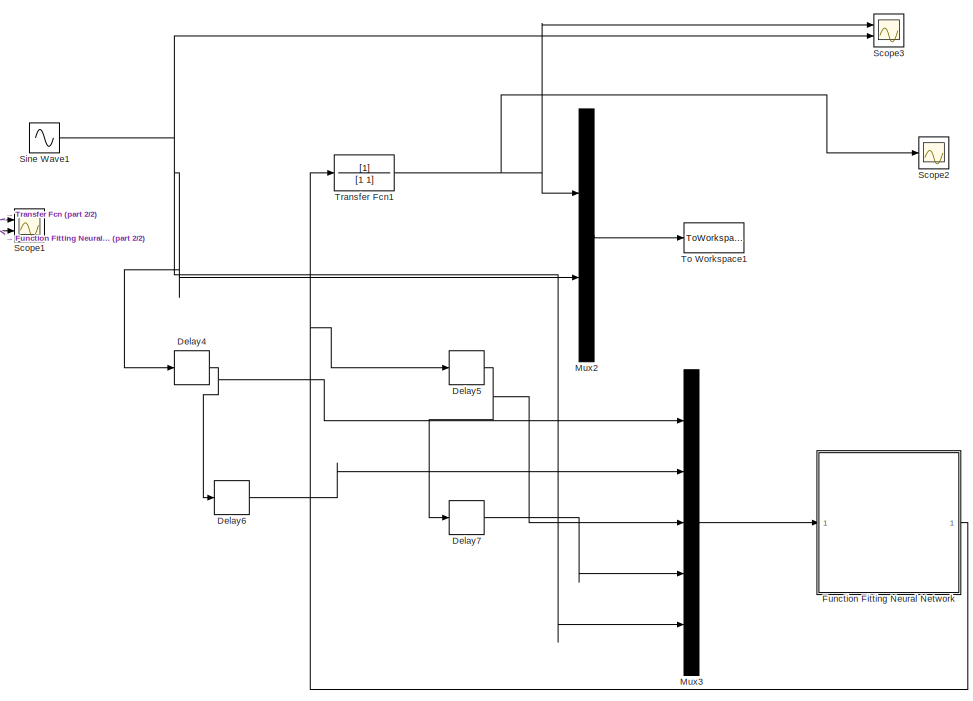
[diagram: root canvas - part 1/2, right side, full height]
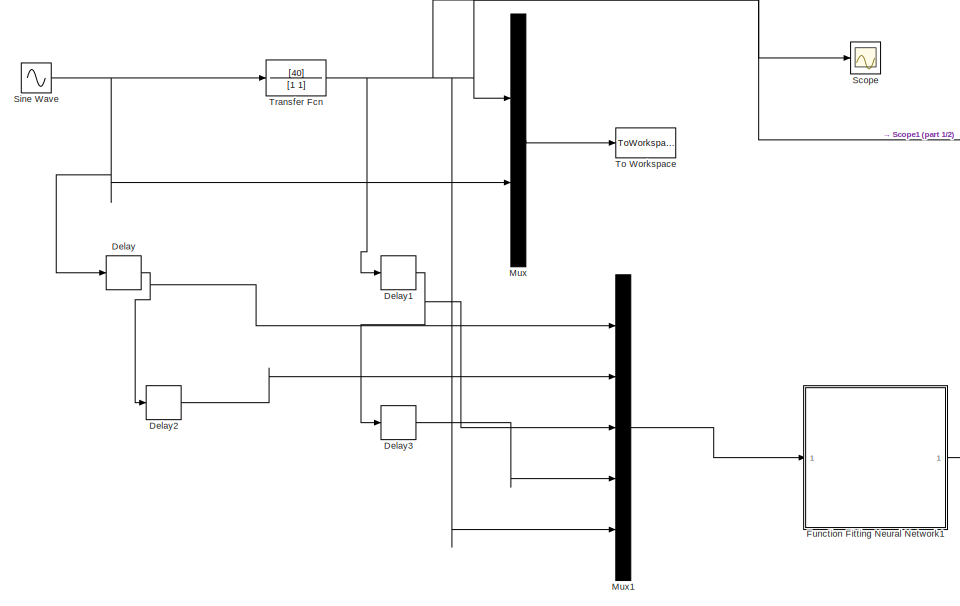
[diagram: root canvas - part 2/2, left side, full height]
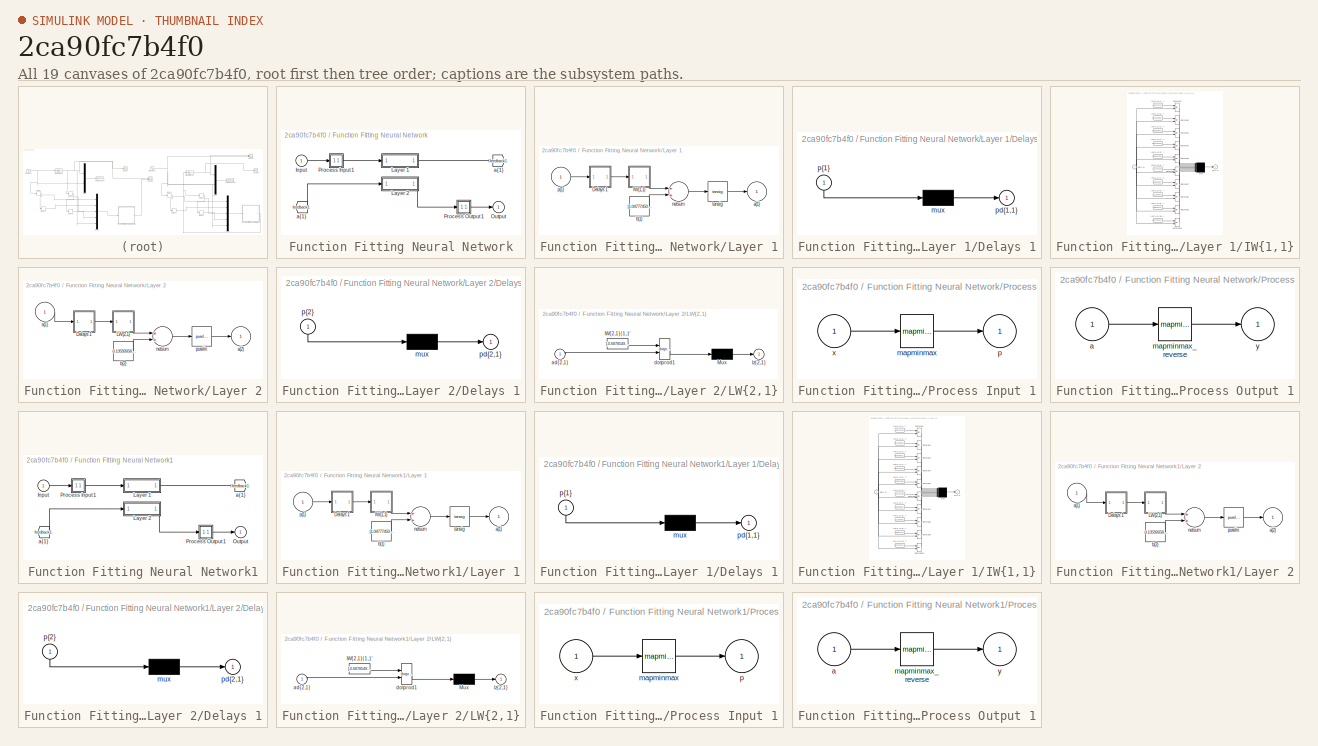
[diagram: thumbnail index - all 19 canvases of the model, root first then tree order]
MODEL slx_2ca90fc7b4f0
KIND model
CONFIG AbsTol = auto
CONFIG EnableMultiTasking = off
CONFIG FixedStep = 0.01
CONFIG MaxStep = auto
CONFIG MinStep = auto
CONFIG RelTol = 1e-3
CONFIG SampleTimeConstraint = Unconstrained
CONFIG Solver = FixedStepAuto
CONFIG SolverName = FixedStepAuto
CONFIG StartTime = 0.0
CONFIG StopTime = 100.0
BLOCK [Delay] Delay
  DelayLength = 1
  InitialCondition = 0
  InputPortMap = u0
  Ports = [1, 1]
BLOCK [Delay] Delay1
  DelayLength = 1
  InitialCondition = 0
  InputPortMap = u0
  Ports = [1, 1]
BLOCK [Delay] Delay2
  DelayLength = 1
  InitialCondition = 0
  InputPortMap = u0
  Ports = [1, 1]
BLOCK [Delay] Delay3
  DelayLength = 1
  InitialCondition = 0
  InputPortMap = u0
  Ports = [1, 1]
BLOCK [Delay] Delay4
  DelayLength = 1
  InitialCondition = 0
  InputPortMap = u0
  Ports = [1, 1]
BLOCK [Delay] Delay5
  DelayLength = 1
  InitialCondition = 0
  InputPortMap = u0
  Ports = [1, 1]
BLOCK [Delay] Delay6
  DelayLength = 1
  InitialCondition = 0
  InputPortMap = u0
  Ports = [1, 1]
BLOCK [Delay] Delay7
  DelayLength = 1
  InitialCondition = 0
  InputPortMap = u0
  Ports = [1, 1]
BLOCK [SubSystem] Function Fitting Neural Network
  Ports = [1, 1]
  RequestExecContextInheritance = off
  Variant = off
BLOCK [From] Function Fitting Neural Network/ a{1} 
  GotoTag = feedback1
BLOCK [Inport] Function Fitting Neural Network/Input
  IconDisplay = Port number
  PortDimensions = 5
BLOCK [SubSystem] Function Fitting Neural Network/Layer 1
  Ports = [1, 1]
  RequestExecContextInheritance = off
  Variant = off
BLOCK [SubSystem] Function Fitting Neural Network/Layer 1/Delays 1
  Ports = [1, 1]
  RequestExecContextInheritance = off
  Variant = off
BLOCK [Mux] Function Fitting Neural Network/Layer 1/Delays 1/mux
  Inputs = 1
  Ports = [1, 1]
BLOCK [Outport] Function Fitting Neural Network/Layer 1/Delays 1/pd{1,1}
  IconDisplay = Port number
BLOCK [Inport] Function Fitting Neural Network/Layer 1/Delays 1/p{1}
  IconDisplay = Port number
  PortDimensions = 5
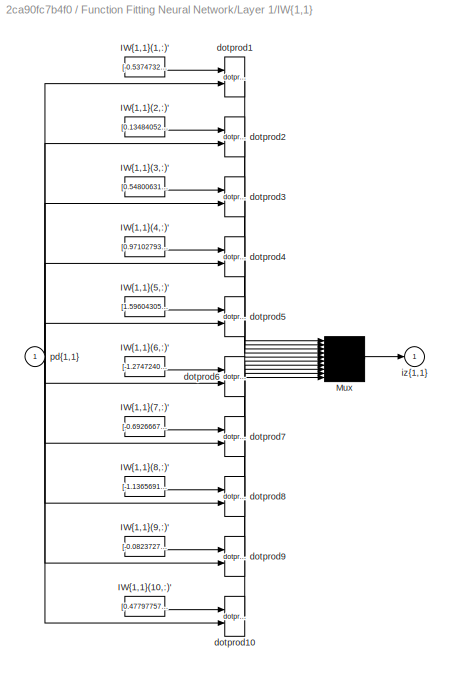
BLOCK [SubSystem] Function Fitting Neural Network/Layer 1/IW{1,1}
  Ports = [1, 1]
  RequestExecContextInheritance = off
  Variant = off
BLOCK [Constant] Function Fitting Neural Network/Layer 1/IW{1,1}/IW{1,1}(1,:)'
  Value = [-0.53747323600851593;0.12837817900687515;-0.81841480590470539;-0.70028737097478255;0.89079933693795632]
BLOCK [Constant] Function Fitting Neural Network/Layer 1/IW{1,1}/IW{1,1}(10,:)'
  Value = [0.47797757792099838;1.1701097540495529;0.40163238008918878;0.087691710526443908;-1.5074124776427453]
BLOCK [Constant] Function Fitting Neural Network/Layer 1/IW{1,1}/IW{1,1}(2,:)'
  Value = [0.13484052542157549;-1.0346971298142165;0.71712003940030067;0.63365159522886794;-1.5252454149059469]
BLOCK [Constant] Function Fitting Neural Network/Layer 1/IW{1,1}/IW{1,1}(3,:)'
  Value = [0.5480063105318066;0.3422184031651197;-0.76013251235281831;1.3249435842832222;-0.8867358682990758]
BLOCK [Constant] Function Fitting Neural Network/Layer 1/IW{1,1}/IW{1,1}(4,:)'
  Value = [0.97102793768099316;-1.09391861398376;1.3122119715910747;0.62317280181124113;0.79077490532891304]
BLOCK [Constant] Function Fitting Neural Network/Layer 1/IW{1,1}/IW{1,1}(5,:)'
  Value = [1.5960430529630831;-1.2092978548636018;-0.56101551599679822;-0.47505314074111604;-0.65216447990274329]
BLOCK [Constant] Function Fitting Neural Network/Layer 1/IW{1,1}/IW{1,1}(6,:)'
  Value = [-1.2747240826377648;0.65905297506986504;1.368705094030781;0.67183148279936522;-0.18450538591836163]
BLOCK [Constant] Function Fitting Neural Network/Layer 1/IW{1,1}/IW{1,1}(7,:)'
  Value = [-0.69266676847053943;0.16367310999235246;-0.61918048233438283;-0.4897285195013758;0.880113528728242]
BLOCK [Constant] Function Fitting Neural Network/Layer 1/IW{1,1}/IW{1,1}(8,:)'
  Value = [-1.1365691382880001;1.5985163195671406;1.5527262981396184;-0.35821939113242335;-0.61100164194473128]
BLOCK [Constant] Function Fitting Neural Network/Layer 1/IW{1,1}/IW{1,1}(9,:)'
  Value = [-0.08237271108489537;-0.6815622811907277;0.10289539556448629;0.44398113099957298;-1.3690618549783862]
BLOCK [Mux] Function Fitting Neural Network/Layer 1/IW{1,1}/Mux
  Inputs = 10
  Ports = [10, 1]
BLOCK [Reference] Function Fitting Neural Network/Layer 1/IW{1,1}/dotprod1  REF=neural/Weight Functions/dotprod
  Ports = [2, 1]
  SourceBlock = neural/Weight Functions/dotprod
  SourceProductBaseCode = NN
  SourceProductName = Neural Network Toolbox
  SourceType = DOTPROD
BLOCK [Reference] Function Fitting Neural Network/Layer 1/IW{1,1}/dotprod10  REF=neural/Weight Functions/dotprod
  Ports = [2, 1]
  SourceBlock = neural/Weight Functions/dotprod
  SourceProductBaseCode = NN
  SourceProductName = Neural Network Toolbox
  SourceType = DOTPROD
BLOCK [Reference] Function Fitting Neural Network/Layer 1/IW{1,1}/dotprod2  REF=neural/Weight Functions/dotprod
  Ports = [2, 1]
  SourceBlock = neural/Weight Functions/dotprod
  SourceProductBaseCode = NN
  SourceProductName = Neural Network Toolbox
  SourceType = DOTPROD
BLOCK [Reference] Function Fitting Neural Network/Layer 1/IW{1,1}/dotprod3  REF=neural/Weight Functions/dotprod
  Ports = [2, 1]
  SourceBlock = neural/Weight Functions/dotprod
  SourceProductBaseCode = NN
  SourceProductName = Neural Network Toolbox
  SourceType = DOTPROD
BLOCK [Reference] Function Fitting Neural Network/Layer 1/IW{1,1}/dotprod4  REF=neural/Weight Functions/dotprod
  Ports = [2, 1]
  SourceBlock = neural/Weight Functions/dotprod
  SourceProductBaseCode = NN
  SourceProductName = Neural Network Toolbox
  SourceType = DOTPROD
BLOCK [Reference] Function Fitting Neural Network/Layer 1/IW{1,1}/dotprod5  REF=neural/Weight Functions/dotprod
  Ports = [2, 1]
  SourceBlock = neural/Weight Functions/dotprod
  SourceProductBaseCode = NN
  SourceProductName = Neural Network Toolbox
  SourceType = DOTPROD
BLOCK [Reference] Function Fitting Neural Network/Layer 1/IW{1,1}/dotprod6  REF=neural/Weight Functions/dotprod
  Ports = [2, 1]
  SourceBlock = neural/Weight Functions/dotprod
  SourceProductBaseCode = NN
  SourceProductName = Neural Network Toolbox
  SourceType = DOTPROD
BLOCK [Reference] Function Fitting Neural Network/Layer 1/IW{1,1}/dotprod7  REF=neural/Weight Functions/dotprod
  Ports = [2, 1]
  SourceBlock = neural/Weight Functions/dotprod
  SourceProductBaseCode = NN
  SourceProductName = Neural Network Toolbox
  SourceType = DOTPROD
BLOCK [Reference] Function Fitting Neural Network/Layer 1/IW{1,1}/dotprod8  REF=neural/Weight Functions/dotprod
  Ports = [2, 1]
  SourceBlock = neural/Weight Functions/dotprod
  SourceProductBaseCode = NN
  SourceProductName = Neural Network Toolbox
  SourceType = DOTPROD
BLOCK [Reference] Function Fitting Neural Network/Layer 1/IW{1,1}/dotprod9  REF=neural/Weight Functions/dotprod
  Ports = [2, 1]
  SourceBlock = neural/Weight Functions/dotprod
  SourceProductBaseCode = NN
  SourceProductName = Neural Network Toolbox
  SourceType = DOTPROD
BLOCK [Outport] Function Fitting Neural Network/Layer 1/IW{1,1}/iz{1,1}
  IconDisplay = Port number
BLOCK [Inport] Function Fitting Neural Network/Layer 1/IW{1,1}/pd{1,1}
  IconDisplay = Port number
  PortDimensions = 5
BLOCK [Outport] Function Fitting Neural Network/Layer 1/a{1}
  IconDisplay = Port number
  InitialOutput = [0;0;0;0;0;0;0;0;0;0]
BLOCK [Constant] Function Fitting Neural Network/Layer 1/b{1}
  Value = [1.0477745001887937;-1.0414962517958946;-0.70172404739261607;-0.47854652314392992;-0.2090222607713447;-0.3567161932972524;0.052998952557050248;-1.5433844484051324;2.0746099009380772;0.74801104776784277]
BLOCK [Sum] Function Fitting Neural Network/Layer 1/netsum
  Inputs = 2
  Ports = [2, 1]
BLOCK [Inport] Function Fitting Neural Network/Layer 1/p{1}
  IconDisplay = Port number
  PortDimensions = 5
BLOCK [Reference] Function Fitting Neural Network/Layer 1/tansig  REF=neural/Transfer Functions/tansig
  Ports = [1, 1]
  SourceBlock = neural/Transfer Functions/tansig
  SourceProductBaseCode = NN
  SourceProductName = Neural Network Toolbox
  SourceType = TANSIG
BLOCK [SubSystem] Function Fitting Neural Network/Layer 2
  Ports = [1, 1]
  RequestExecContextInheritance = off
  Variant = off
BLOCK [SubSystem] Function Fitting Neural Network/Layer 2/Delays 1
  Ports = [1, 1]
  RequestExecContextInheritance = off
  Variant = off
BLOCK [Mux] Function Fitting Neural Network/Layer 2/Delays 1/mux
  Inputs = 1
  Ports = [1, 1]
BLOCK [Outport] Function Fitting Neural Network/Layer 2/Delays 1/pd{2,1}
  IconDisplay = Port number
BLOCK [Inport] Function Fitting Neural Network/Layer 2/Delays 1/p{2}
  IconDisplay = Port number
  PortDimensions = 10
BLOCK [SubSystem] Function Fitting Neural Network/Layer 2/LW{2,1}
  Ports = [1, 1]
  RequestExecContextInheritance = off
  Variant = off
BLOCK [Constant] Function Fitting Neural Network/Layer 2/LW{2,1}/IW{2,1}(1,:)'
  Value = [-0.68785492656406455;-0.46746510641153421;0.71918235867292146;-0.0023047396825711082;-0.023219389789162697;-0.035761110294063765;-0.51891871057974481;-1.2938818775930994;-0.52413447335247021;0.14125981506850174]
BLOCK [Mux] Function Fitting Neural Network/Layer 2/LW{2,1}/Mux
  Inputs = 1
  Ports = [1, 1]
BLOCK [Inport] Function Fitting Neural Network/Layer 2/LW{2,1}/ad{2,1}
  IconDisplay = Port number
  PortDimensions = 10
BLOCK [Reference] Function Fitting Neural Network/Layer 2/LW{2,1}/dotprod1  REF=neural/Weight Functions/dotprod
  Ports = [2, 1]
  SourceBlock = neural/Weight Functions/dotprod
  SourceProductBaseCode = NN
  SourceProductName = Neural Network Toolbox
  SourceType = DOTPROD
BLOCK [Outport] Function Fitting Neural Network/Layer 2/LW{2,1}/lz{2,1}
  IconDisplay = Port number
BLOCK [Inport] Function Fitting Neural Network/Layer 2/a{1} 
  IconDisplay = Port number
  PortDimensions = 10
BLOCK [Outport] Function Fitting Neural Network/Layer 2/a{2}
  IconDisplay = Port number
  InitialOutput = 0
BLOCK [Constant] Function Fitting Neural Network/Layer 2/b{2}
  Value = -0.13592658820545742
BLOCK [Sum] Function Fitting Neural Network/Layer 2/netsum
  Inputs = 2
  Ports = [2, 1]
BLOCK [Reference] Function Fitting Neural Network/Layer 2/purelin  REF=neural/Transfer Functions/purelin
  Ports = [1, 1]
  SourceBlock = neural/Transfer Functions/purelin
  SourceProductBaseCode = NN
  SourceProductName = Neural Network Toolbox
  SourceType = PURELIN
BLOCK [Outport] Function Fitting Neural Network/Output
  IconDisplay = Port number
  InitialOutput = 0
BLOCK [SubSystem] Function Fitting Neural Network/Process Input 1
  Ports = [1, 1]
  RequestExecContextInheritance = off
  Variant = off
BLOCK [Reference] Function Fitting Neural Network/Process Input 1/mapminmax  REF=neural/Processing Functions/mapminmax
  Ports = [1, 1]
  SourceBlock = neural/Processing Functions/mapminmax
  SourceProductBaseCode = NN
  SourceProductName = Neural Network Toolbox
  SourceType = MAPMINMAX Preprocess
BLOCK [Outport] Function Fitting Neural Network/Process Input 1/p
  IconDisplay = Port number
  PortDimensions = 5
BLOCK [Inport] Function Fitting Neural Network/Process Input 1/x
  IconDisplay = Port number
  PortDimensions = 5
BLOCK [SubSystem] Function Fitting Neural Network/Process Output 1
  Ports = [1, 1]
  RequestExecContextInheritance = off
  Variant = off
BLOCK [Inport] Function Fitting Neural Network/Process Output 1/a
  IconDisplay = Port number
  PortDimensions = 1
BLOCK [Reference] Function Fitting Neural Network/Process Output 1/mapminmax_reverse  REF=neural/Processing Functions/mapminmax_reverse
  Ports = [1, 1]
  SourceBlock = neural/Processing Functions/mapminmax_reverse
  SourceProductBaseCode = NN
  SourceProductName = Neural Network Toolbox
  SourceType = MAPMINMAX Reverse Process
BLOCK [Outport] Function Fitting Neural Network/Process Output 1/y
  IconDisplay = Port number
  PortDimensions = 1
BLOCK [Goto] Function Fitting Neural Network/a{1}
  GotoTag = feedback1
BLOCK [SubSystem] Function Fitting Neural Network1
  Ports = [1, 1]
  RequestExecContextInheritance = off
  Variant = off
BLOCK [From] Function Fitting Neural Network1/ a{1} 
  GotoTag = feedback1
BLOCK [Inport] Function Fitting Neural Network1/Input
  IconDisplay = Port number
  PortDimensions = 5
BLOCK [SubSystem] Function Fitting Neural Network1/Layer 1
  Ports = [1, 1]
  RequestExecContextInheritance = off
  Variant = off
BLOCK [SubSystem] Function Fitting Neural Network1/Layer 1/Delays 1
  Ports = [1, 1]
  RequestExecContextInheritance = off
  Variant = off
BLOCK [Mux] Function Fitting Neural Network1/Layer 1/Delays 1/mux
  Inputs = 1
  Ports = [1, 1]
BLOCK [Outport] Function Fitting Neural Network1/Layer 1/Delays 1/pd{1,1}
  IconDisplay = Port number
BLOCK [Inport] Function Fitting Neural Network1/Layer 1/Delays 1/p{1}
  IconDisplay = Port number
  PortDimensions = 5
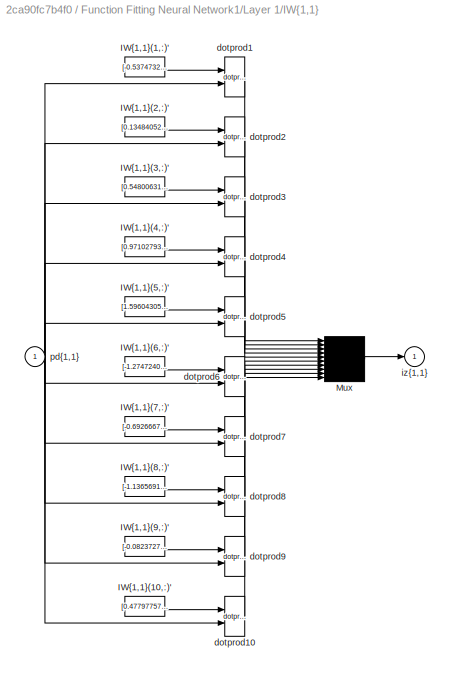
BLOCK [SubSystem] Function Fitting Neural Network1/Layer 1/IW{1,1}
  Ports = [1, 1]
  RequestExecContextInheritance = off
  Variant = off
BLOCK [Constant] Function Fitting Neural Network1/Layer 1/IW{1,1}/IW{1,1}(1,:)'
  Value = [-0.53747323600851593;0.12837817900687515;-0.81841480590470539;-0.70028737097478255;0.89079933693795632]
BLOCK [Constant] Function Fitting Neural Network1/Layer 1/IW{1,1}/IW{1,1}(10,:)'
  Value = [0.47797757792099838;1.1701097540495529;0.40163238008918878;0.087691710526443908;-1.5074124776427453]
BLOCK [Constant] Function Fitting Neural Network1/Layer 1/IW{1,1}/IW{1,1}(2,:)'
  Value = [0.13484052542157549;-1.0346971298142165;0.71712003940030067;0.63365159522886794;-1.5252454149059469]
BLOCK [Constant] Function Fitting Neural Network1/Layer 1/IW{1,1}/IW{1,1}(3,:)'
  Value = [0.5480063105318066;0.3422184031651197;-0.76013251235281831;1.3249435842832222;-0.8867358682990758]
BLOCK [Constant] Function Fitting Neural Network1/Layer 1/IW{1,1}/IW{1,1}(4,:)'
  Value = [0.97102793768099316;-1.09391861398376;1.3122119715910747;0.62317280181124113;0.79077490532891304]
BLOCK [Constant] Function Fitting Neural Network1/Layer 1/IW{1,1}/IW{1,1}(5,:)'
  Value = [1.5960430529630831;-1.2092978548636018;-0.56101551599679822;-0.47505314074111604;-0.65216447990274329]
BLOCK [Constant] Function Fitting Neural Network1/Layer 1/IW{1,1}/IW{1,1}(6,:)'
  Value = [-1.2747240826377648;0.65905297506986504;1.368705094030781;0.67183148279936522;-0.18450538591836163]
BLOCK [Constant] Function Fitting Neural Network1/Layer 1/IW{1,1}/IW{1,1}(7,:)'
  Value = [-0.69266676847053943;0.16367310999235246;-0.61918048233438283;-0.4897285195013758;0.880113528728242]
BLOCK [Constant] Function Fitting Neural Network1/Layer 1/IW{1,1}/IW{1,1}(8,:)'
  Value = [-1.1365691382880001;1.5985163195671406;1.5527262981396184;-0.35821939113242335;-0.61100164194473128]
BLOCK [Constant] Function Fitting Neural Network1/Layer 1/IW{1,1}/IW{1,1}(9,:)'
  Value = [-0.08237271108489537;-0.6815622811907277;0.10289539556448629;0.44398113099957298;-1.3690618549783862]
BLOCK [Mux] Function Fitting Neural Network1/Layer 1/IW{1,1}/Mux
  Inputs = 10
  Ports = [10, 1]
BLOCK [Reference] Function Fitting Neural Network1/Layer 1/IW{1,1}/dotprod1  REF=neural/Weight Functions/dotprod
  Ports = [2, 1]
  SourceBlock = neural/Weight Functions/dotprod
  SourceProductBaseCode = NN
  SourceProductName = Neural Network Toolbox
  SourceType = DOTPROD
BLOCK [Reference] Function Fitting Neural Network1/Layer 1/IW{1,1}/dotprod10  REF=neural/Weight Functions/dotprod
  Ports = [2, 1]
  SourceBlock = neural/Weight Functions/dotprod
  SourceProductBaseCode = NN
  SourceProductName = Neural Network Toolbox
  SourceType = DOTPROD
BLOCK [Reference] Function Fitting Neural Network1/Layer 1/IW{1,1}/dotprod2  REF=neural/Weight Functions/dotprod
  Ports = [2, 1]
  SourceBlock = neural/Weight Functions/dotprod
  SourceProductBaseCode = NN
  SourceProductName = Neural Network Toolbox
  SourceType = DOTPROD
BLOCK [Reference] Function Fitting Neural Network1/Layer 1/IW{1,1}/dotprod3  REF=neural/Weight Functions/dotprod
  Ports = [2, 1]
  SourceBlock = neural/Weight Functions/dotprod
  SourceProductBaseCode = NN
  SourceProductName = Neural Network Toolbox
  SourceType = DOTPROD
BLOCK [Reference] Function Fitting Neural Network1/Layer 1/IW{1,1}/dotprod4  REF=neural/Weight Functions/dotprod
  Ports = [2, 1]
  SourceBlock = neural/Weight Functions/dotprod
  SourceProductBaseCode = NN
  SourceProductName = Neural Network Toolbox
  SourceType = DOTPROD
BLOCK [Reference] Function Fitting Neural Network1/Layer 1/IW{1,1}/dotprod5  REF=neural/Weight Functions/dotprod
  Ports = [2, 1]
  SourceBlock = neural/Weight Functions/dotprod
  SourceProductBaseCode = NN
  SourceProductName = Neural Network Toolbox
  SourceType = DOTPROD
BLOCK [Reference] Function Fitting Neural Network1/Layer 1/IW{1,1}/dotprod6  REF=neural/Weight Functions/dotprod
  Ports = [2, 1]
  SourceBlock = neural/Weight Functions/dotprod
  SourceProductBaseCode = NN
  SourceProductName = Neural Network Toolbox
  SourceType = DOTPROD
BLOCK [Reference] Function Fitting Neural Network1/Layer 1/IW{1,1}/dotprod7  REF=neural/Weight Functions/dotprod
  Ports = [2, 1]
  SourceBlock = neural/Weight Functions/dotprod
  SourceProductBaseCode = NN
  SourceProductName = Neural Network Toolbox
  SourceType = DOTPROD
BLOCK [Reference] Function Fitting Neural Network1/Layer 1/IW{1,1}/dotprod8  REF=neural/Weight Functions/dotprod
  Ports = [2, 1]
  SourceBlock = neural/Weight Functions/dotprod
  SourceProductBaseCode = NN
  SourceProductName = Neural Network Toolbox
  SourceType = DOTPROD
BLOCK [Reference] Function Fitting Neural Network1/Layer 1/IW{1,1}/dotprod9  REF=neural/Weight Functions/dotprod
  Ports = [2, 1]
  SourceBlock = neural/Weight Functions/dotprod
  SourceProductBaseCode = NN
  SourceProductName = Neural Network Toolbox
  SourceType = DOTPROD
BLOCK [Outport] Function Fitting Neural Network1/Layer 1/IW{1,1}/iz{1,1}
  IconDisplay = Port number
BLOCK [Inport] Function Fitting Neural Network1/Layer 1/IW{1,1}/pd{1,1}
  IconDisplay = Port number
  PortDimensions = 5
BLOCK [Outport] Function Fitting Neural Network1/Layer 1/a{1}
  IconDisplay = Port number
  InitialOutput = [0;0;0;0;0;0;0;0;0;0]
BLOCK [Constant] Function Fitting Neural Network1/Layer 1/b{1}
  Value = [1.0477745001887937;-1.0414962517958946;-0.70172404739261607;-0.47854652314392992;-0.2090222607713447;-0.3567161932972524;0.052998952557050248;-1.5433844484051324;2.0746099009380772;0.74801104776784277]
BLOCK [Sum] Function Fitting Neural Network1/Layer 1/netsum
  Inputs = 2
  Ports = [2, 1]
BLOCK [Inport] Function Fitting Neural Network1/Layer 1/p{1}
  IconDisplay = Port number
  PortDimensions = 5
BLOCK [Reference] Function Fitting Neural Network1/Layer 1/tansig  REF=neural/Transfer Functions/tansig
  Ports = [1, 1]
  SourceBlock = neural/Transfer Functions/tansig
  SourceProductBaseCode = NN
  SourceProductName = Neural Network Toolbox
  SourceType = TANSIG
BLOCK [SubSystem] Function Fitting Neural Network1/Layer 2
  Ports = [1, 1]
  RequestExecContextInheritance = off
  Variant = off
BLOCK [SubSystem] Function Fitting Neural Network1/Layer 2/Delays 1
  Ports = [1, 1]
  RequestExecContextInheritance = off
  Variant = off
BLOCK [Mux] Function Fitting Neural Network1/Layer 2/Delays 1/mux
  Inputs = 1
  Ports = [1, 1]
BLOCK [Outport] Function Fitting Neural Network1/Layer 2/Delays 1/pd{2,1}
  IconDisplay = Port number
BLOCK [Inport] Function Fitting Neural Network1/Layer 2/Delays 1/p{2}
  IconDisplay = Port number
  PortDimensions = 10
BLOCK [SubSystem] Function Fitting Neural Network1/Layer 2/LW{2,1}
  Ports = [1, 1]
  RequestExecContextInheritance = off
  Variant = off
BLOCK [Constant] Function Fitting Neural Network1/Layer 2/LW{2,1}/IW{2,1}(1,:)'
  Value = [-0.68785492656406455;-0.46746510641153421;0.71918235867292146;-0.0023047396825711082;-0.023219389789162697;-0.035761110294063765;-0.51891871057974481;-1.2938818775930994;-0.52413447335247021;0.14125981506850174]
BLOCK [Mux] Function Fitting Neural Network1/Layer 2/LW{2,1}/Mux
  Inputs = 1
  Ports = [1, 1]
BLOCK [Inport] Function Fitting Neural Network1/Layer 2/LW{2,1}/ad{2,1}
  IconDisplay = Port number
  PortDimensions = 10
BLOCK [Reference] Function Fitting Neural Network1/Layer 2/LW{2,1}/dotprod1  REF=neural/Weight Functions/dotprod
  Ports = [2, 1]
  SourceBlock = neural/Weight Functions/dotprod
  SourceProductBaseCode = NN
  SourceProductName = Neural Network Toolbox
  SourceType = DOTPROD
BLOCK [Outport] Function Fitting Neural Network1/Layer 2/LW{2,1}/lz{2,1}
  IconDisplay = Port number
BLOCK [Inport] Function Fitting Neural Network1/Layer 2/a{1} 
  IconDisplay = Port number
  PortDimensions = 10
BLOCK [Outport] Function Fitting Neural Network1/Layer 2/a{2}
  IconDisplay = Port number
  InitialOutput = 0
BLOCK [Constant] Function Fitting Neural Network1/Layer 2/b{2}
  Value = -0.13592658820545742
BLOCK [Sum] Function Fitting Neural Network1/Layer 2/netsum
  Inputs = 2
  Ports = [2, 1]
BLOCK [Reference] Function Fitting Neural Network1/Layer 2/purelin  REF=neural/Transfer Functions/purelin
  Ports = [1, 1]
  SourceBlock = neural/Transfer Functions/purelin
  SourceProductBaseCode = NN
  SourceProductName = Neural Network Toolbox
  SourceType = PURELIN
BLOCK [Outport] Function Fitting Neural Network1/Output
  IconDisplay = Port number
  InitialOutput = 0
BLOCK [SubSystem] Function Fitting Neural Network1/Process Input 1
  Ports = [1, 1]
  RequestExecContextInheritance = off
  Variant = off
BLOCK [Reference] Function Fitting Neural Network1/Process Input 1/mapminmax  REF=neural/Processing Functions/mapminmax
  Ports = [1, 1]
  SourceBlock = neural/Processing Functions/mapminmax
  SourceProductBaseCode = NN
  SourceProductName = Neural Network Toolbox
  SourceType = MAPMINMAX Preprocess
BLOCK [Outport] Function Fitting Neural Network1/Process Input 1/p
  IconDisplay = Port number
  PortDimensions = 5
BLOCK [Inport] Function Fitting Neural Network1/Process Input 1/x
  IconDisplay = Port number
  PortDimensions = 5
BLOCK [SubSystem] Function Fitting Neural Network1/Process Output 1
  Ports = [1, 1]
  RequestExecContextInheritance = off
  Variant = off
BLOCK [Inport] Function Fitting Neural Network1/Process Output 1/a
  IconDisplay = Port number
  PortDimensions = 1
BLOCK [Reference] Function Fitting Neural Network1/Process Output 1/mapminmax_reverse  REF=neural/Processing Functions/mapminmax_reverse
  Ports = [1, 1]
  SourceBlock = neural/Processing Functions/mapminmax_reverse
  SourceProductBaseCode = NN
  SourceProductName = Neural Network Toolbox
  SourceType = MAPMINMAX Reverse Process
BLOCK [Outport] Function Fitting Neural Network1/Process Output 1/y
  IconDisplay = Port number
  PortDimensions = 1
BLOCK [Goto] Function Fitting Neural Network1/a{1}
  GotoTag = feedback1
BLOCK [Mux] Mux
  DisplayOption = bar
  Inputs = 2
  Ports = [2, 1]
BLOCK [Mux] Mux1
  DisplayOption = bar
  Inputs = 5
  Ports = [5, 1]
BLOCK [Mux] Mux2
  DisplayOption = bar
  Inputs = 2
  Ports = [2, 1]
BLOCK [Mux] Mux3
  DisplayOption = bar
  Inputs = 5
  Ports = [5, 1]
BLOCK [Scope] Scope
  NumInputPorts = 1
  Ports = [1]
  ScopeSpecificationString = Simulink.scopes.TimeScopeBlockCfg('CurrentConfiguration', extmgr.ConfigurationSet(extmgr.Configuration('Core','General UI',true),extmgr.Configuration('Core','Source UI',true),extmgr.Configuration('Sources','WiredSimulink',true),extmgr.Configuration('Visuals','Time Domain',true,'SerializedDisplays',{struct('MinYLimReal','-35.60079','MaxYLimReal','37.56441','YLabelReal','','MinYLimMag','0.00000','Ma...<+1338ch>
BLOCK [Scope] Scope1
  NumInputPorts = 2
  Ports = [2]
  ScopeSpecificationString = Simulink.scopes.TimeScopeBlockCfg('CurrentConfiguration', extmgr.ConfigurationSet(extmgr.Configuration('Core','General UI',true),extmgr.Configuration('Core','Source UI',true),extmgr.Configuration('Sources','WiredSimulink',true,'DataLoggingVariableName','ScopeData1'),extmgr.Configuration('Visuals','Time Domain',true,'SerializedDisplays',{struct('MinYLimReal','-35.60079','MaxYLimReal','37.56441','YL...<+1512ch>
BLOCK [Scope] Scope2
  NumInputPorts = 1
  Ports = [1]
  ScopeSpecificationString = Simulink.scopes.TimeScopeBlockCfg('CurrentConfiguration', extmgr.ConfigurationSet(extmgr.Configuration('Core','General UI',true),extmgr.Configuration('Core','Source UI',true),extmgr.Configuration('Sources','WiredSimulink',true,'DataLoggingVariableName','ScopeData2'),extmgr.Configuration('Visuals','Time Domain',true),extmgr.Configuration('Tools','Plot Navigation',true),extmgr.Configuration('Tools',...<+40ch>
BLOCK [Scope] Scope3
  NumInputPorts = 2
  Ports = [2]
  ScopeSpecificationString = Simulink.scopes.TimeScopeBlockCfg('CurrentConfiguration', extmgr.ConfigurationSet(extmgr.Configuration('Core','General UI',true),extmgr.Configuration('Core','Source UI',true),extmgr.Configuration('Sources','WiredSimulink',true,'DataLoggingVariableName','ScopeData3'),extmgr.Configuration('Visuals','Time Domain',true,'SerializedDisplays',{struct('MinYLimReal','-4.54881','MaxYLimReal','4.88753','YLab...<+1485ch>
BLOCK [Sin] Sine Wave
  Ports = [0, 1]
  SampleTime = 0
BLOCK [Sin] Sine Wave1
  Ports = [0, 1]
  SampleTime = 0
BLOCK [ToWorkspace] To Workspace
  FixptAsFi = on
  MaxDataPoints = inf
  Ports = [1]
  SampleTime = -1
  Save2DSignal = 3-D array (concatenate along third dimension)
  SaveFormat = Timeseries
  VariableName = simout
BLOCK [ToWorkspace] To Workspace1
  FixptAsFi = on
  MaxDataPoints = inf
  Ports = [1]
  SampleTime = -1
  Save2DSignal = 3-D array (concatenate along third dimension)
  SaveFormat = Timeseries
  VariableName = simout1
BLOCK [TransferFcn] Transfer Fcn
  Denominator = [1 1]
  Numerator = [40]
BLOCK [TransferFcn] Transfer Fcn1
  Denominator = [1 1]
NET Delay1:1 -> Delay3:1, Mux1:3
LINE Delay2:1 -> Mux1:2
LINE Delay3:1 -> Mux1:4
NET Delay4:1 -> Delay6:1, Mux3:1
NET Delay5:1 -> Delay7:1, Mux3:3
LINE Delay6:1 -> Mux3:2
LINE Delay7:1 -> Mux3:4
NET Delay:1 -> Delay2:1, Mux1:1
LINE Function Fitting Neural Network/ a{1} :1 -> Function Fitting Neural Network/Layer 2:1
LINE Function Fitting Neural Network/Input:1 -> Function Fitting Neural Network/Process Input 1:1
LINE Function Fitting Neural Network/Layer 1/Delays 1/mux:1 -> Function Fitting Neural Network/Layer 1/Delays 1/pd{1,1}:1
LINE Function Fitting Neural Network/Layer 1/Delays 1/p{1}:1 -> Function Fitting Neural Network/Layer 1/Delays 1/mux:1
LINE Function Fitting Neural Network/Layer 1/Delays 1:1 -> Function Fitting Neural Network/Layer 1/IW{1,1}:1
LINE Function Fitting Neural Network/Layer 1/IW{1,1}/IW{1,1}(1,:)':1 -> Function Fitting Neural Network/Layer 1/IW{1,1}/dotprod1:1
LINE Function Fitting Neural Network/Layer 1/IW{1,1}/IW{1,1}(10,:)':1 -> Function Fitting Neural Network/Layer 1/IW{1,1}/dotprod10:1
LINE Function Fitting Neural Network/Layer 1/IW{1,1}/IW{1,1}(2,:)':1 -> Function Fitting Neural Network/Layer 1/IW{1,1}/dotprod2:1
LINE Function Fitting Neural Network/Layer 1/IW{1,1}/IW{1,1}(3,:)':1 -> Function Fitting Neural Network/Layer 1/IW{1,1}/dotprod3:1
LINE Function Fitting Neural Network/Layer 1/IW{1,1}/IW{1,1}(4,:)':1 -> Function Fitting Neural Network/Layer 1/IW{1,1}/dotprod4:1
LINE Function Fitting Neural Network/Layer 1/IW{1,1}/IW{1,1}(5,:)':1 -> Function Fitting Neural Network/Layer 1/IW{1,1}/dotprod5:1
LINE Function Fitting Neural Network/Layer 1/IW{1,1}/IW{1,1}(6,:)':1 -> Function Fitting Neural Network/Layer 1/IW{1,1}/dotprod6:1
LINE Function Fitting Neural Network/Layer 1/IW{1,1}/IW{1,1}(7,:)':1 -> Function Fitting Neural Network/Layer 1/IW{1,1}/dotprod7:1
LINE Function Fitting Neural Network/Layer 1/IW{1,1}/IW{1,1}(8,:)':1 -> Function Fitting Neural Network/Layer 1/IW{1,1}/dotprod8:1
LINE Function Fitting Neural Network/Layer 1/IW{1,1}/IW{1,1}(9,:)':1 -> Function Fitting Neural Network/Layer 1/IW{1,1}/dotprod9:1
LINE Function Fitting Neural Network/Layer 1/IW{1,1}/Mux:1 -> Function Fitting Neural Network/Layer 1/IW{1,1}/iz{1,1}:1
LINE Function Fitting Neural Network/Layer 1/IW{1,1}/dotprod10:1 -> Function Fitting Neural Network/Layer 1/IW{1,1}/Mux:10
LINE Function Fitting Neural Network/Layer 1/IW{1,1}/dotprod1:1 -> Function Fitting Neural Network/Layer 1/IW{1,1}/Mux:1
LINE Function Fitting Neural Network/Layer 1/IW{1,1}/dotprod2:1 -> Function Fitting Neural Network/Layer 1/IW{1,1}/Mux:2
LINE Function Fitting Neural Network/Layer 1/IW{1,1}/dotprod3:1 -> Function Fitting Neural Network/Layer 1/IW{1,1}/Mux:3
LINE Function Fitting Neural Network/Layer 1/IW{1,1}/dotprod4:1 -> Function Fitting Neural Network/Layer 1/IW{1,1}/Mux:4
LINE Function Fitting Neural Network/Layer 1/IW{1,1}/dotprod5:1 -> Function Fitting Neural Network/Layer 1/IW{1,1}/Mux:5
LINE Function Fitting Neural Network/Layer 1/IW{1,1}/dotprod6:1 -> Function Fitting Neural Network/Layer 1/IW{1,1}/Mux:6
LINE Function Fitting Neural Network/Layer 1/IW{1,1}/dotprod7:1 -> Function Fitting Neural Network/Layer 1/IW{1,1}/Mux:7
LINE Function Fitting Neural Network/Layer 1/IW{1,1}/dotprod8:1 -> Function Fitting Neural Network/Layer 1/IW{1,1}/Mux:8
LINE Function Fitting Neural Network/Layer 1/IW{1,1}/dotprod9:1 -> Function Fitting Neural Network/Layer 1/IW{1,1}/Mux:9
NET Function Fitting Neural Network/Layer 1/IW{1,1}/pd{1,1}:1 -> Function Fitting Neural Network/Layer 1/IW{1,1}/dotprod10:2, Function Fitting Neural Network/Layer 1/IW{1,1}/dotprod1:2, Function Fitting Neural Network/Layer 1/IW{1,1}/dotprod2:2, Function Fitting Neural Network/Layer 1/IW{1,1}/dotprod3:2, Function Fitting Neural Network/Layer 1/IW{1,1}/dotprod4:2, Function Fitting Neural Network/Layer 1/IW{1,1}/dotprod5:2, Function Fitting Neural Network/Layer 1/IW{1,1}/dotprod6:2, Function Fitting Neural Network/Layer 1/IW{1,1}/dotprod7:2, Function Fitting Neural Network/Layer 1/IW{1,1}/dotprod8:2, Function Fitting Neural Network/Layer 1/IW{1,1}/dotprod9:2
LINE Function Fitting Neural Network/Layer 1/IW{1,1}:1 -> Function Fitting Neural Network/Layer 1/netsum:1
LINE Function Fitting Neural Network/Layer 1/b{1}:1 -> Function Fitting Neural Network/Layer 1/netsum:2
LINE Function Fitting Neural Network/Layer 1/netsum:1 -> Function Fitting Neural Network/Layer 1/tansig:1
LINE Function Fitting Neural Network/Layer 1/p{1}:1 -> Function Fitting Neural Network/Layer 1/Delays 1:1
LINE Function Fitting Neural Network/Layer 1/tansig:1 -> Function Fitting Neural Network/Layer 1/a{1}:1
LINE Function Fitting Neural Network/Layer 1:1 -> Function Fitting Neural Network/a{1}:1
LINE Function Fitting Neural Network/Layer 2/Delays 1/mux:1 -> Function Fitting Neural Network/Layer 2/Delays 1/pd{2,1}:1
LINE Function Fitting Neural Network/Layer 2/Delays 1/p{2}:1 -> Function Fitting Neural Network/Layer 2/Delays 1/mux:1
LINE Function Fitting Neural Network/Layer 2/Delays 1:1 -> Function Fitting Neural Network/Layer 2/LW{2,1}:1
LINE Function Fitting Neural Network/Layer 2/LW{2,1}/IW{2,1}(1,:)':1 -> Function Fitting Neural Network/Layer 2/LW{2,1}/dotprod1:1
LINE Function Fitting Neural Network/Layer 2/LW{2,1}/Mux:1 -> Function Fitting Neural Network/Layer 2/LW{2,1}/lz{2,1}:1
LINE Function Fitting Neural Network/Layer 2/LW{2,1}/ad{2,1}:1 -> Function Fitting Neural Network/Layer 2/LW{2,1}/dotprod1:2
LINE Function Fitting Neural Network/Layer 2/LW{2,1}/dotprod1:1 -> Function Fitting Neural Network/Layer 2/LW{2,1}/Mux:1
LINE Function Fitting Neural Network/Layer 2/LW{2,1}:1 -> Function Fitting Neural Network/Layer 2/netsum:1
LINE Function Fitting Neural Network/Layer 2/a{1} :1 -> Function Fitting Neural Network/Layer 2/Delays 1:1
LINE Function Fitting Neural Network/Layer 2/b{2}:1 -> Function Fitting Neural Network/Layer 2/netsum:2
LINE Function Fitting Neural Network/Layer 2/netsum:1 -> Function Fitting Neural Network/Layer 2/purelin:1
LINE Function Fitting Neural Network/Layer 2/purelin:1 -> Function Fitting Neural Network/Layer 2/a{2}:1
LINE Function Fitting Neural Network/Layer 2:1 -> Function Fitting Neural Network/Process Output 1:1
LINE Function Fitting Neural Network/Process Input 1/mapminmax:1 -> Function Fitting Neural Network/Process Input 1/p:1
LINE Function Fitting Neural Network/Process Input 1/x:1 -> Function Fitting Neural Network/Process Input 1/mapminmax:1
LINE Function Fitting Neural Network/Process Input 1:1 -> Function Fitting Neural Network/Layer 1:1
LINE Function Fitting Neural Network/Process Output 1/a:1 -> Function Fitting Neural Network/Process Output 1/mapminmax_reverse:1
LINE Function Fitting Neural Network/Process Output 1/mapminmax_reverse:1 -> Function Fitting Neural Network/Process Output 1/y:1
LINE Function Fitting Neural Network/Process Output 1:1 -> Function Fitting Neural Network/Output:1
LINE Function Fitting Neural Network1/ a{1} :1 -> Function Fitting Neural Network1/Layer 2:1
LINE Function Fitting Neural Network1/Input:1 -> Function Fitting Neural Network1/Process Input 1:1
LINE Function Fitting Neural Network1/Layer 1/Delays 1/mux:1 -> Function Fitting Neural Network1/Layer 1/Delays 1/pd{1,1}:1
LINE Function Fitting Neural Network1/Layer 1/Delays 1/p{1}:1 -> Function Fitting Neural Network1/Layer 1/Delays 1/mux:1
LINE Function Fitting Neural Network1/Layer 1/Delays 1:1 -> Function Fitting Neural Network1/Layer 1/IW{1,1}:1
LINE Function Fitting Neural Network1/Layer 1/IW{1,1}/IW{1,1}(1,:)':1 -> Function Fitting Neural Network1/Layer 1/IW{1,1}/dotprod1:1
LINE Function Fitting Neural Network1/Layer 1/IW{1,1}/IW{1,1}(10,:)':1 -> Function Fitting Neural Network1/Layer 1/IW{1,1}/dotprod10:1
LINE Function Fitting Neural Network1/Layer 1/IW{1,1}/IW{1,1}(2,:)':1 -> Function Fitting Neural Network1/Layer 1/IW{1,1}/dotprod2:1
LINE Function Fitting Neural Network1/Layer 1/IW{1,1}/IW{1,1}(3,:)':1 -> Function Fitting Neural Network1/Layer 1/IW{1,1}/dotprod3:1
LINE Function Fitting Neural Network1/Layer 1/IW{1,1}/IW{1,1}(4,:)':1 -> Function Fitting Neural Network1/Layer 1/IW{1,1}/dotprod4:1
LINE Function Fitting Neural Network1/Layer 1/IW{1,1}/IW{1,1}(5,:)':1 -> Function Fitting Neural Network1/Layer 1/IW{1,1}/dotprod5:1
LINE Function Fitting Neural Network1/Layer 1/IW{1,1}/IW{1,1}(6,:)':1 -> Function Fitting Neural Network1/Layer 1/IW{1,1}/dotprod6:1
LINE Function Fitting Neural Network1/Layer 1/IW{1,1}/IW{1,1}(7,:)':1 -> Function Fitting Neural Network1/Layer 1/IW{1,1}/dotprod7:1
LINE Function Fitting Neural Network1/Layer 1/IW{1,1}/IW{1,1}(8,:)':1 -> Function Fitting Neural Network1/Layer 1/IW{1,1}/dotprod8:1
LINE Function Fitting Neural Network1/Layer 1/IW{1,1}/IW{1,1}(9,:)':1 -> Function Fitting Neural Network1/Layer 1/IW{1,1}/dotprod9:1
LINE Function Fitting Neural Network1/Layer 1/IW{1,1}/Mux:1 -> Function Fitting Neural Network1/Layer 1/IW{1,1}/iz{1,1}:1
LINE Function Fitting Neural Network1/Layer 1/IW{1,1}/dotprod10:1 -> Function Fitting Neural Network1/Layer 1/IW{1,1}/Mux:10
LINE Function Fitting Neural Network1/Layer 1/IW{1,1}/dotprod1:1 -> Function Fitting Neural Network1/Layer 1/IW{1,1}/Mux:1
LINE Function Fitting Neural Network1/Layer 1/IW{1,1}/dotprod2:1 -> Function Fitting Neural Network1/Layer 1/IW{1,1}/Mux:2
LINE Function Fitting Neural Network1/Layer 1/IW{1,1}/dotprod3:1 -> Function Fitting Neural Network1/Layer 1/IW{1,1}/Mux:3
LINE Function Fitting Neural Network1/Layer 1/IW{1,1}/dotprod4:1 -> Function Fitting Neural Network1/Layer 1/IW{1,1}/Mux:4
LINE Function Fitting Neural Network1/Layer 1/IW{1,1}/dotprod5:1 -> Function Fitting Neural Network1/Layer 1/IW{1,1}/Mux:5
LINE Function Fitting Neural Network1/Layer 1/IW{1,1}/dotprod6:1 -> Function Fitting Neural Network1/Layer 1/IW{1,1}/Mux:6
LINE Function Fitting Neural Network1/Layer 1/IW{1,1}/dotprod7:1 -> Function Fitting Neural Network1/Layer 1/IW{1,1}/Mux:7
LINE Function Fitting Neural Network1/Layer 1/IW{1,1}/dotprod8:1 -> Function Fitting Neural Network1/Layer 1/IW{1,1}/Mux:8
LINE Function Fitting Neural Network1/Layer 1/IW{1,1}/dotprod9:1 -> Function Fitting Neural Network1/Layer 1/IW{1,1}/Mux:9
NET Function Fitting Neural Network1/Layer 1/IW{1,1}/pd{1,1}:1 -> Function Fitting Neural Network1/Layer 1/IW{1,1}/dotprod10:2, Function Fitting Neural Network1/Layer 1/IW{1,1}/dotprod1:2, Function Fitting Neural Network1/Layer 1/IW{1,1}/dotprod2:2, Function Fitting Neural Network1/Layer 1/IW{1,1}/dotprod3:2, Function Fitting Neural Network1/Layer 1/IW{1,1}/dotprod4:2, Function Fitting Neural Network1/Layer 1/IW{1,1}/dotprod5:2, Function Fitting Neural Network1/Layer 1/IW{1,1}/dotprod6:2, Function Fitting Neural Network1/Layer 1/IW{1,1}/dotprod7:2, Function Fitting Neural Network1/Layer 1/IW{1,1}/dotprod8:2, Function Fitting Neural Network1/Layer 1/IW{1,1}/dotprod9:2
LINE Function Fitting Neural Network1/Layer 1/IW{1,1}:1 -> Function Fitting Neural Network1/Layer 1/netsum:1
LINE Function Fitting Neural Network1/Layer 1/b{1}:1 -> Function Fitting Neural Network1/Layer 1/netsum:2
LINE Function Fitting Neural Network1/Layer 1/netsum:1 -> Function Fitting Neural Network1/Layer 1/tansig:1
LINE Function Fitting Neural Network1/Layer 1/p{1}:1 -> Function Fitting Neural Network1/Layer 1/Delays 1:1
LINE Function Fitting Neural Network1/Layer 1/tansig:1 -> Function Fitting Neural Network1/Layer 1/a{1}:1
LINE Function Fitting Neural Network1/Layer 1:1 -> Function Fitting Neural Network1/a{1}:1
LINE Function Fitting Neural Network1/Layer 2/Delays 1/mux:1 -> Function Fitting Neural Network1/Layer 2/Delays 1/pd{2,1}:1
LINE Function Fitting Neural Network1/Layer 2/Delays 1/p{2}:1 -> Function Fitting Neural Network1/Layer 2/Delays 1/mux:1
LINE Function Fitting Neural Network1/Layer 2/Delays 1:1 -> Function Fitting Neural Network1/Layer 2/LW{2,1}:1
LINE Function Fitting Neural Network1/Layer 2/LW{2,1}/IW{2,1}(1,:)':1 -> Function Fitting Neural Network1/Layer 2/LW{2,1}/dotprod1:1
LINE Function Fitting Neural Network1/Layer 2/LW{2,1}/Mux:1 -> Function Fitting Neural Network1/Layer 2/LW{2,1}/lz{2,1}:1
LINE Function Fitting Neural Network1/Layer 2/LW{2,1}/ad{2,1}:1 -> Function Fitting Neural Network1/Layer 2/LW{2,1}/dotprod1:2
LINE Function Fitting Neural Network1/Layer 2/LW{2,1}/dotprod1:1 -> Function Fitting Neural Network1/Layer 2/LW{2,1}/Mux:1
LINE Function Fitting Neural Network1/Layer 2/LW{2,1}:1 -> Function Fitting Neural Network1/Layer 2/netsum:1
LINE Function Fitting Neural Network1/Layer 2/a{1} :1 -> Function Fitting Neural Network1/Layer 2/Delays 1:1
LINE Function Fitting Neural Network1/Layer 2/b{2}:1 -> Function Fitting Neural Network1/Layer 2/netsum:2
LINE Function Fitting Neural Network1/Layer 2/netsum:1 -> Function Fitting Neural Network1/Layer 2/purelin:1
LINE Function Fitting Neural Network1/Layer 2/purelin:1 -> Function Fitting Neural Network1/Layer 2/a{2}:1
LINE Function Fitting Neural Network1/Layer 2:1 -> Function Fitting Neural Network1/Process Output 1:1
LINE Function Fitting Neural Network1/Process Input 1/mapminmax:1 -> Function Fitting Neural Network1/Process Input 1/p:1
LINE Function Fitting Neural Network1/Process Input 1/x:1 -> Function Fitting Neural Network1/Process Input 1/mapminmax:1
LINE Function Fitting Neural Network1/Process Input 1:1 -> Function Fitting Neural Network1/Layer 1:1
LINE Function Fitting Neural Network1/Process Output 1/a:1 -> Function Fitting Neural Network1/Process Output 1/mapminmax_reverse:1
LINE Function Fitting Neural Network1/Process Output 1/mapminmax_reverse:1 -> Function Fitting Neural Network1/Process Output 1/y:1
LINE Function Fitting Neural Network1/Process Output 1:1 -> Function Fitting Neural Network1/Output:1
LINE Function Fitting Neural Network1:1 -> Scope1:2
NET Function Fitting Neural Network:1 -> Delay5:1, Transfer Fcn1:1
LINE Mux1:1 -> Function Fitting Neural Network1:1
LINE Mux2:1 -> To Workspace1:1
LINE Mux3:1 -> Function Fitting Neural Network:1
LINE Mux:1 -> To Workspace:1
NET Sine Wave1:1 -> Delay4:1, Mux2:2, Mux3:5, Scope3:2
NET Sine Wave:1 -> Delay:1, Mux:2, Transfer Fcn:1
NET Transfer Fcn1:1 -> Mux2:1, Scope2:1, Scope3:1
NET Transfer Fcn:1 -> Delay1:1, Mux1:5, Mux:1, Scope1:1, Scope:1
note: NET lines group one-source signal fan-out (src -> all destinations, sorted); 1:1 wires keep LINE
